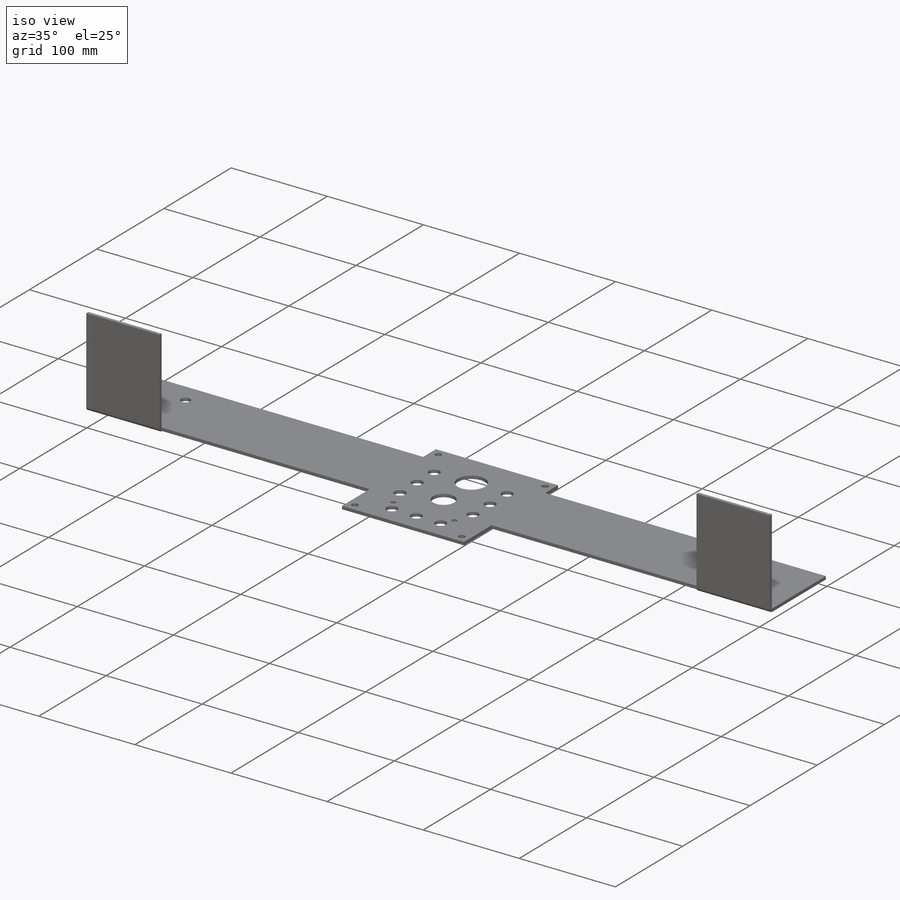
[diagram: iso view]
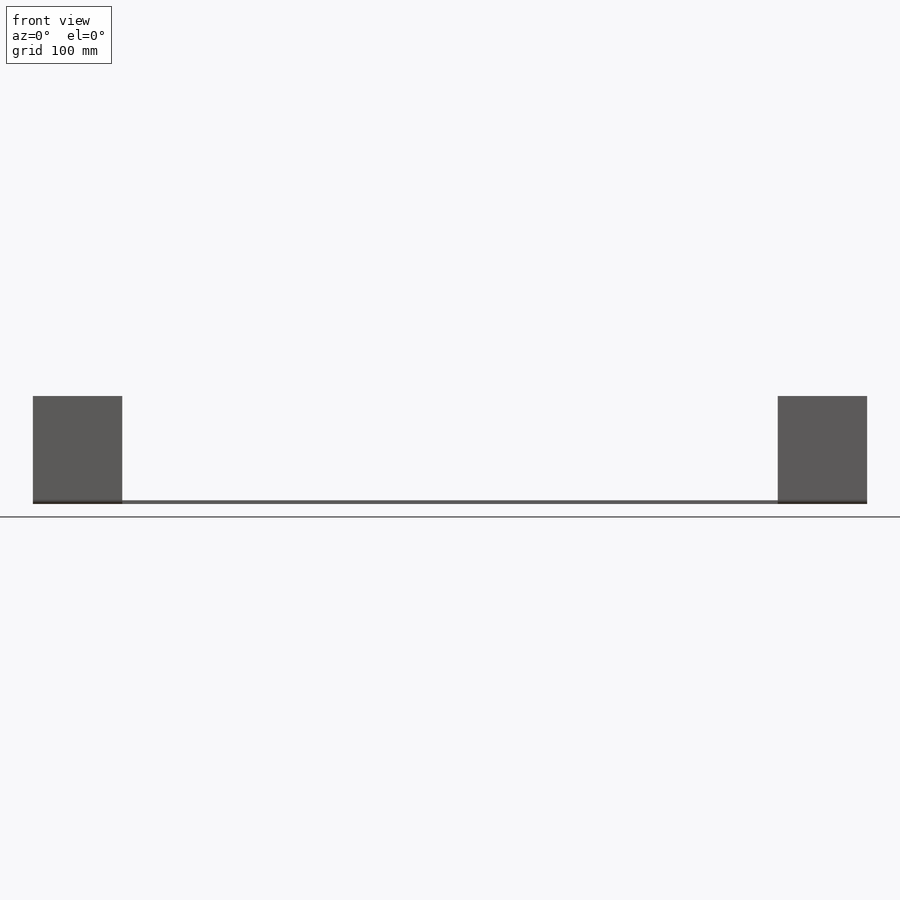
[diagram: front view]
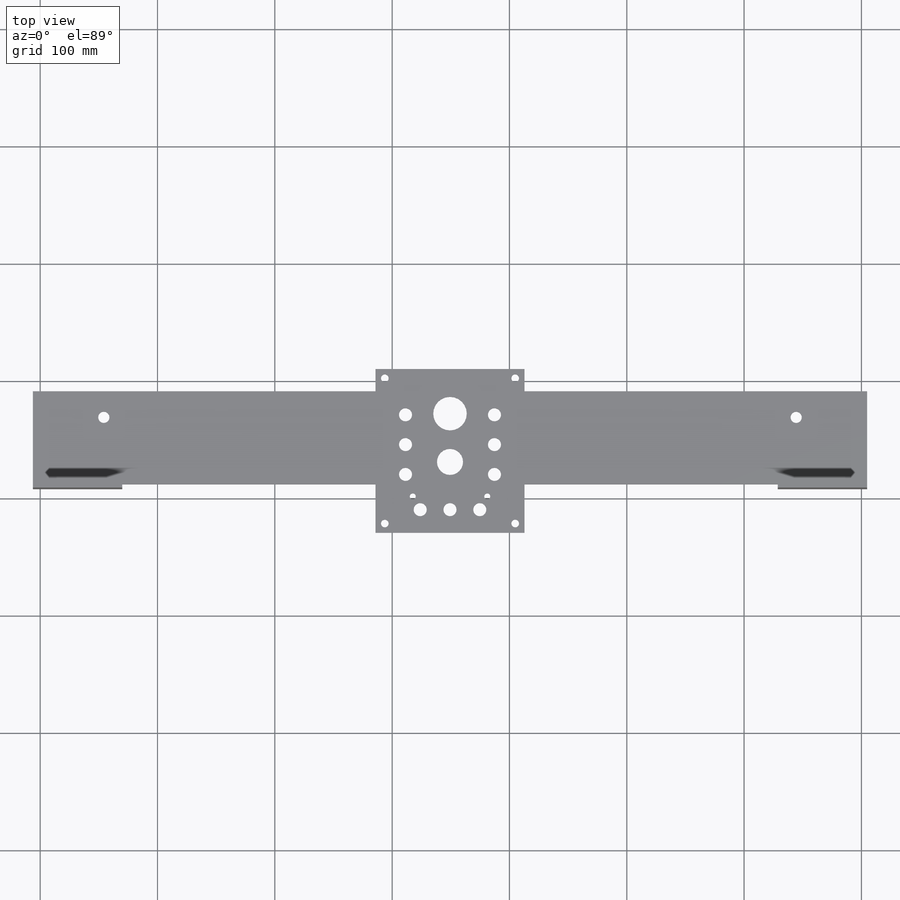
[diagram: top view]
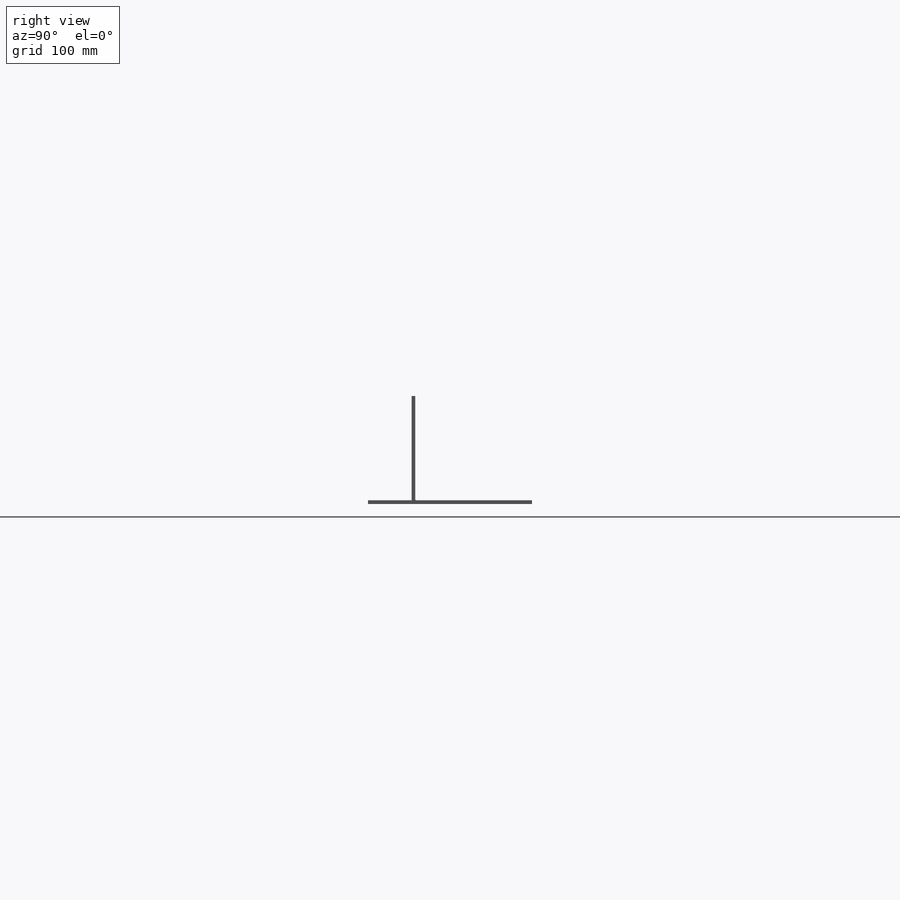
[diagram: right view]
SOLIDWORKS PART (.sldprt)
format: sldprt  version: not decoded by parser v0  size: 610,304 bytes
history: native  units: mm
features: sketch x37, cut_extrude x19, sheet_metal_op x12, material x1, extrude x1 + 13 further entries (+12 scaffold rows collapsed; 13 parser-record rows omitted)
feature tree (108):
  scaffold x12  (default folders/planes/origin — collapsed)
  material  "6061-T6 (SS)"
  sketch  "Sketch18"  dims[c1.D1=711.2mm c2.D1=0.7366mm c2.D2=0.5 c2.D3=0.0mm c2.D6=500.0mm]
  sheet_metal_op  "Base-Flange1"
  sketch  "Sketch23"  dims[D1=76.2mm D2=88.9mm D3=215.9mm]
  cut_extrude  "Cut-Extrude1"  [1 undecoded]
  sketch  "Sketch24"  dims[D1=~60.813222mm D2=139.7mm D3=127.0mm]
  cut_extrude  "Cut-Extrude2"  [1 undecoded]
  sketch  "Sketch25"  dims[D1=215.9mm D2=88.9mm]
  cut_extrude  "Cut-Extrude3"  [1 undecoded]
  sketch  "Sketch30"  dims[D1=215.9mm D2=3.175mm]
  cut_extrude  "Cut-Extrude6"  [1 undecoded]
  sketch  "Sketch38"  dims[D1=3.175mm D2=215.9mm]
  cut_extrude  "Cut-Extrude8"  [1 undecoded]
  sketch  "Sketch39"
  parser-record x13  (decoder bookkeeping rows leaked as tree rows — omitted from the tree; the rows remain in map.json)
  sketch  "Sketch40"  dims[Sketched Bend18=0.0]
  "SketchBend16"
  sketch  "Sketch46"  dims[D1=6.5024mm D2=11.1252mm D3=11.1252mm D4=11.1252mm D5=6.5024mm D6=5.08mm D7=5.08mm D8=11.1252mm D9=22.225mm D10=11.1252mm D11=11.1252mm D12=11.1252mm D13=28.575mm D14=11.1252mm D15=11.1252mm]
  cut_extrude  "Cut-Extrude10"  [1 undecoded]
  sketch  "Sketch47"  dims[D2=9.525mm D3=9.525mm D1=19.05mm D4=3.175mm D5=3.175mm D6=~295.07434mm D7=~295.07434mm]
  cut_extrude  "Cut-Extrude11"  [1 undecoded]
  sketch  "Sketch48"  dims[D1=127.0mm D2=292.1mm]
  extrude  "Boss-Extrude1"  Depth=19.05mm
  sketch  "Sketch49"  dims[D1=6.5024mm D2=7.9248mm D3=7.9248mm D4=7.9248mm D5=7.9248mm]
  cut_extrude  "Cut-Extrude12"  [1 undecoded]
  sketch  "Sketch50"  dims[D1=7.9248mm D2=19.05mm]
  cut_extrude  "Cut-Extrude13"  [1 undecoded]
  sketch  "Bend-Lines5"
  sketch  "Bounding-Box5"
  sheet_metal_op  "Sheet-Metal(5)"
  "Flat-Pattern(5)"
  sketch  "Bend-Lines6"
  sketch  "Bounding-Box6"
  cut_extrude  "Sheet-Metal(6)"  Depth=0.7366mm
  sheet_metal_op  "Flat-Pattern(5)"
  sketch  "Bend-Lines6"
  sketch  "Bounding-Box6"
  cut_extrude  "Sheet-Metal(7)"  Depth=0.7366mm
  sheet_metal_op  "Flat-Pattern(5)"
  sketch  "Bend-Lines6"
  sketch  "Bounding-Box6"
  cut_extrude  "Sheet-Metal(8)"  Depth=0.7366mm
  sheet_metal_op  "Flat-Pattern(5)"
  sketch  "Bend-Lines6"
  sketch  "Bounding-Box6"
  cut_extrude  "Sheet-Metal(11)"  Depth=0.7366mm
  sheet_metal_op  "Flat-Pattern(5)"
  sketch  "Bend-Lines6"
  sketch  "Bounding-Box6"
  cut_extrude  "Sheet-Metal(13)"  Depth=0.7366mm
  sheet_metal_op  "Flat-Pattern(5)"
  sketch  "Bend-Lines6"
  sketch  "Bounding-Box6"
  "Flatten-<SketchBend16>1"
  cut_extrude  "Sheet-Metal(17)"  Depth=0.7366mm
  sheet_metal_op  "Flat-Pattern(5)"
  sketch  "Bend-Lines6"
  sketch  "Bounding-Box6"
  "Flatten-<SketchBend15>1"
  "Flatten-<SketchBend16>1"
  cut_extrude  "Sheet-Metal(18)"  Depth=0.7366mm
  sheet_metal_op  "Flat-Pattern(5)"
  sketch  "Bend-Lines6"
  sketch  "Bounding-Box6"
  "Flatten-<SketchBend15>1"
  "Flatten-<SketchBend16>1"
  cut_extrude  "Sheet-Metal(19)"  Depth=0.7366mm
  sheet_metal_op  "Flat-Pattern(5)"
  sketch  "Bend-Lines6"
  sketch  "Bounding-Box6"
  "Flatten-<SketchBend15>1"
  "Flatten-<SketchBend16>1"
  cut_extrude  "Sheet-Metal(20)"  Depth=0.7366mm
  sheet_metal_op  "Flat-Pattern(5)"
  sketch  "Bend-Lines6"
  sketch  "Bounding-Box6"
  "Flatten-<SketchBend15>1"
  "Flatten-<SketchBend16>1"
  cut_extrude  "Sheet-Metal(21)"  Depth=0.7366mm
  sheet_metal_op  "Flat-Pattern(5)"
  sketch  "Bend-Lines6"
  sketch  "Bounding-Box6"
  "Flatten-<SketchBend15>1"
  "Flatten-<SketchBend16>1"
decode coverage: 23 of 69 modeling features carry decoded parameters; 13 rows unclassified (native names shown)
note: ~ marks probable driven/reference dimensions
note: 9 parameter values undecoded
summary: no parameter record found for 9 features | [note 3] (x8 features) parser:v0:name_prior (class ref resolved by constrained assignment + name prior)
note: suppression state not decoded; provenance and decode notes live in map.json
